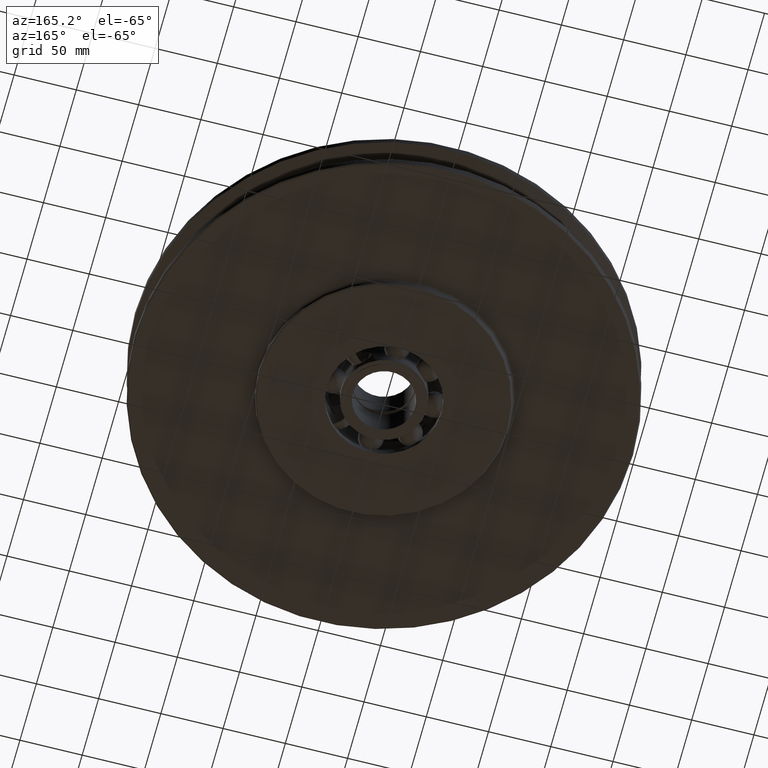
[diagram: clean part render]
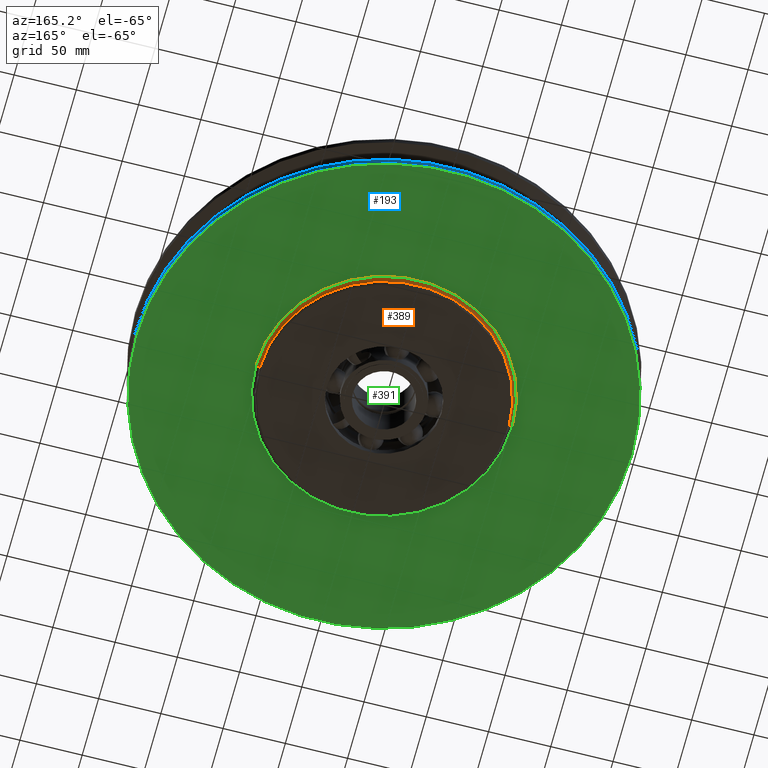
[diagram: same view with three faces highlighted in distinct colors, each labeled with its STEP entity id]
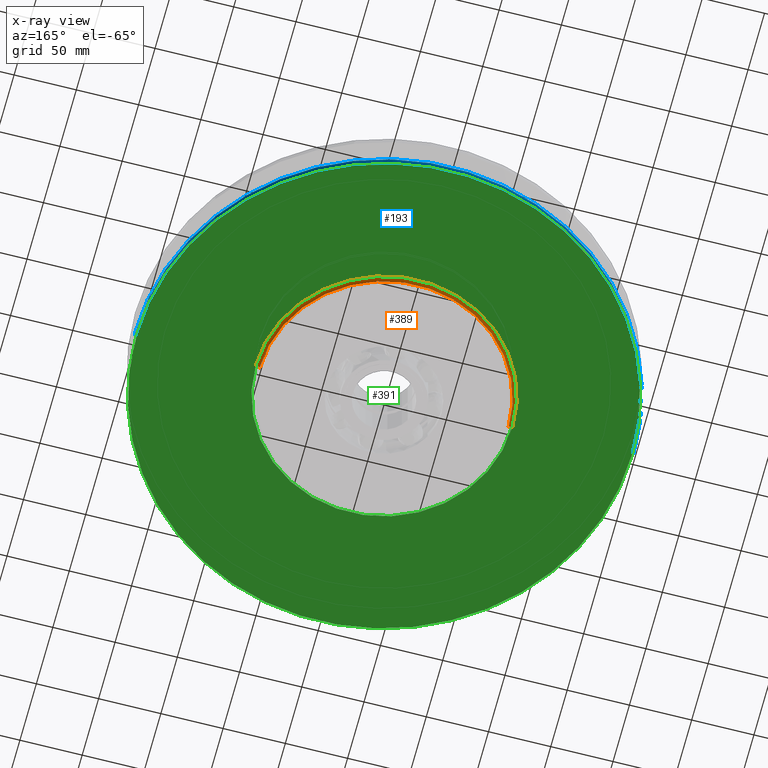
[diagram: x-ray of the same camera — body ghosted, the three highlighted faces saturated]
A machine part, auxiliary view with three faces highlighted in distinct colors.
The next image is the same camera in x-ray (body ghosted, the three faces saturated) — at least one of them is partly hidden behind the body in this view.
Their STEP definitions:

[orange] entity #389 — the highlighted toroidal blend (fillet) surface has major radius 103 mm and minor (blend) radius 3 mm.
#389=ADVANCED_FACE('',(#801),#802,.F.);
#801=FACE_OUTER_BOUND('',#1211,.T.);
#802=TOROIDAL_SURFACE('',#1212,103.0,2.99999999999999);
#1211=EDGE_LOOP('',(#2507,#2508,#2509,#2510));
#1212=AXIS2_PLACEMENT_3D('',#2511,#2512,#2513);
#2507=ORIENTED_EDGE('',*,*,#2673,.T.);
#2508=ORIENTED_EDGE('',*,*,#3091,.F.);
#2509=ORIENTED_EDGE('',*,*,#2675,.T.);
#2510=ORIENTED_EDGE('',*,*,#2681,.T.);
#2511=CARTESIAN_POINT('',(0.0,0.0,-25.5));
#2512=DIRECTION('',(0.0,0.0,1.0));
#2513=DIRECTION('',(1.0,0.0,0.0));
#2673=EDGE_CURVE('',#3290,#3291,#3292,.T.);
#2675=EDGE_CURVE('',#3295,#3293,#3296,.T.);
#2681=EDGE_CURVE('',#3293,#3290,#3304,.T.);
#3091=EDGE_CURVE('',#3295,#3291,#3908,.T.);
#3290=VERTEX_POINT('',#5331);
#3291=VERTEX_POINT('',#5332);
#3292=CIRCLE('',#5333,2.99999999999999);
#3293=VERTEX_POINT('',#5334);
#3295=VERTEX_POINT('',#5336);
#3296=CIRCLE('',#5337,2.99999999999999);
#3304=CIRCLE('',#5347,100.0);
#3908=CIRCLE('',#9107,103.0);
#5331=CARTESIAN_POINT('',(-100.0,1.22464679914735E-014,-25.5));
#5332=CARTESIAN_POINT('',(-103.0,1.26138620312177E-014,-22.5));
#5333=AXIS2_PLACEMENT_3D('',#9264,#9265,#9266);
#5334=CARTESIAN_POINT('',(100.0,0.0,-25.5));
#5336=CARTESIAN_POINT('',(103.0,0.0,-22.5));
#5337=AXIS2_PLACEMENT_3D('',#9270,#9271,#9272);
#5347=AXIS2_PLACEMENT_3D('',#9281,#9282,#9283);
#9107=AXIS2_PLACEMENT_3D('',#9722,#9723,#9724);
#9264=CARTESIAN_POINT('',(-103.0,1.26138620312177E-014,-25.5));
#9265=DIRECTION('',(-1.22464679914735E-016,-1.0,0.0));
#9266=DIRECTION('',(-1.0,1.22464679914735E-016,-0.0));
#9270=CARTESIAN_POINT('',(103.0,-1.26138620312177E-014,-25.5));
#9271=DIRECTION('',(-1.22464679914735E-016,-1.0,0.0));
#9272=DIRECTION('',(1.0,-1.22464679914735E-016,0.0));
#9281=CARTESIAN_POINT('',(0.0,0.0,-25.5));
#9282=DIRECTION('',(0.0,0.0,1.0));
#9283=DIRECTION('',(1.0,0.0,0.0));
#9722=CARTESIAN_POINT('',(0.0,0.0,-22.5));
#9723=DIRECTION('',(0.0,0.0,1.0));
#9724=DIRECTION('',(1.0,0.0,0.0));

[blue] entity #193 — the highlighted cylindrical surface (partial cylindrical patch) has radius 200 mm, axis along (0, 0, 1).
#193=ADVANCED_FACE('',(#484),#485,.T.);
#484=FACE_OUTER_BOUND('',#894,.T.);
#485=CYLINDRICAL_SURFACE('',#895,200.0);
#894=EDGE_LOOP('',(#1403,#1404,#1405,#1406));
#895=AXIS2_PLACEMENT_3D('',#1407,#1408,#1409);
#1403=ORIENTED_EDGE('',*,*,#2665,.F.);
#1404=ORIENTED_EDGE('',*,*,#2666,.T.);
#1405=ORIENTED_EDGE('',*,*,#2667,.F.);
#1406=ORIENTED_EDGE('',*,*,#2661,.F.);
#1407=CARTESIAN_POINT('',(0.0,0.0,-18.62713975));
#1408=DIRECTION('',(0.0,0.0,1.0));
#1409=DIRECTION('',(1.0,0.0,0.0));
#2661=EDGE_CURVE('',#3271,#3273,#3274,.T.);
#2665=EDGE_CURVE('',#3278,#3271,#3279,.T.);
#2666=EDGE_CURVE('',#3278,#3280,#3281,.T.);
#2667=EDGE_CURVE('',#3273,#3280,#3282,.T.);
#3271=VERTEX_POINT('',#5306);
#3273=VERTEX_POINT('',#5309);
#3274=CIRCLE('',#5310,200.0);
#3278=VERTEX_POINT('',#5315);
#3279=LINE('',#5316,#5317);
#3280=VERTEX_POINT('',#5318);
#3281=CIRCLE('',#5319,200.0);
#3282=LINE('',#5320,#5321);
#5306=CARTESIAN_POINT('',(200.0,0.0,-15.7542795));
#5309=CARTESIAN_POINT('',(-200.0,2.44929359829471E-014,-15.7542795));
#5310=AXIS2_PLACEMENT_3D('',#9247,#9248,#9249);
#5315=CARTESIAN_POINT('',(200.0,0.0,-21.5));
#5316=CARTESIAN_POINT('',(200.0,-2.44929359829471E-014,-18.62713975));
#5317=VECTOR('',#9254,1.0);
#5318=CARTESIAN_POINT('',(-200.0,2.44929359829471E-014,-21.5));
#5319=AXIS2_PLACEMENT_3D('',#9255,#9256,#9257);
#5320=CARTESIAN_POINT('',(-200.0,2.44929359829471E-014,-18.62713975));
#5321=VECTOR('',#9258,1.0);
#9247=CARTESIAN_POINT('',(0.0,0.0,-15.7542795));
#9248=DIRECTION('',(0.0,0.0,1.0));
#9249=DIRECTION('',(1.0,0.0,0.0));
#9254=DIRECTION('',(0.0,0.0,1.0));
#9255=CARTESIAN_POINT('',(0.0,0.0,-21.5));
#9256=DIRECTION('',(0.0,0.0,1.0));
#9257=DIRECTION('',(1.0,0.0,0.0));
#9258=DIRECTION('',(-0.0,-0.0,-1.0));

[green] entity #391 — the highlighted planar face has unit normal (-0, 0, -1).
#391=ADVANCED_FACE('',(#804,#805),#806,.T.);
#804=FACE_OUTER_BOUND('',#1214,.T.);
#805=FACE_BOUND('',#1215,.T.);
#806=PLANE('',#1216);
#1214=EDGE_LOOP('',(#2515,#2516));
#1215=EDGE_LOOP('',(#2517,#2518));
#1216=AXIS2_PLACEMENT_3D('',#2519,#2520,#2521);
#2515=ORIENTED_EDGE('',*,*,#2670,.F.);
#2516=ORIENTED_EDGE('',*,*,#3093,.F.);
#2517=ORIENTED_EDGE('',*,*,#3091,.T.);
#2518=ORIENTED_EDGE('',*,*,#2676,.T.);
#2519=CARTESIAN_POINT('',(151.0,0.0,-22.5));
#2520=DIRECTION('',(-0.0,0.0,-1.0));
#2521=DIRECTION('',(-1.0,-0.0,0.0));
#2670=EDGE_CURVE('',#3284,#3286,#3287,.T.);
#2676=EDGE_CURVE('',#3291,#3295,#3297,.T.);
#3091=EDGE_CURVE('',#3295,#3291,#3908,.T.);
#3093=EDGE_CURVE('',#3286,#3284,#3910,.T.);
#3284=VERTEX_POINT('',#5323);
#3286=VERTEX_POINT('',#5326);
#3287=CIRCLE('',#5327,199.0);
#3291=VERTEX_POINT('',#5332);
#3295=VERTEX_POINT('',#5336);
#3297=CIRCLE('',#5338,103.0);
#3908=CIRCLE('',#9107,103.0);
#3910=CIRCLE('',#9109,199.0);
#5323=CARTESIAN_POINT('',(199.0,0.0,-22.5));
#5326=CARTESIAN_POINT('',(-199.0,2.43704713030323E-014,-22.5));
#5327=AXIS2_PLACEMENT_3D('',#9260,#9261,#9262);
#5332=CARTESIAN_POINT('',(-103.0,1.26138620312177E-014,-22.5));
#5336=CARTESIAN_POINT('',(103.0,0.0,-22.5));
#5338=AXIS2_PLACEMENT_3D('',#9273,#9274,#9275);
#9107=AXIS2_PLACEMENT_3D('',#9722,#9723,#9724);
#9109=AXIS2_PLACEMENT_3D('',#9725,#9726,#9727);
#9260=CARTESIAN_POINT('',(0.0,0.0,-22.5));
#9261=DIRECTION('',(0.0,0.0,1.0));
#9262=DIRECTION('',(1.0,0.0,0.0));
#9273=CARTESIAN_POINT('',(0.0,0.0,-22.5));
#9274=DIRECTION('',(0.0,0.0,1.0));
#9275=DIRECTION('',(1.0,0.0,0.0));
#9722=CARTESIAN_POINT('',(0.0,0.0,-22.5));
#9723=DIRECTION('',(0.0,0.0,1.0));
#9724=DIRECTION('',(1.0,0.0,0.0));
#9725=CARTESIAN_POINT('',(0.0,0.0,-22.5));
#9726=DIRECTION('',(0.0,0.0,1.0));
#9727=DIRECTION('',(1.0,0.0,0.0));